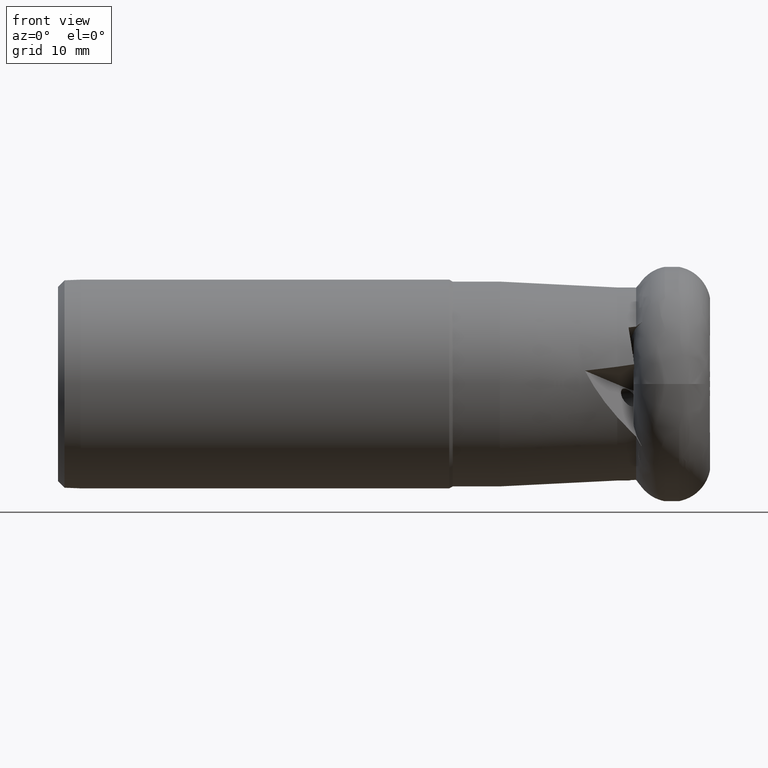
[diagram: clean part render]
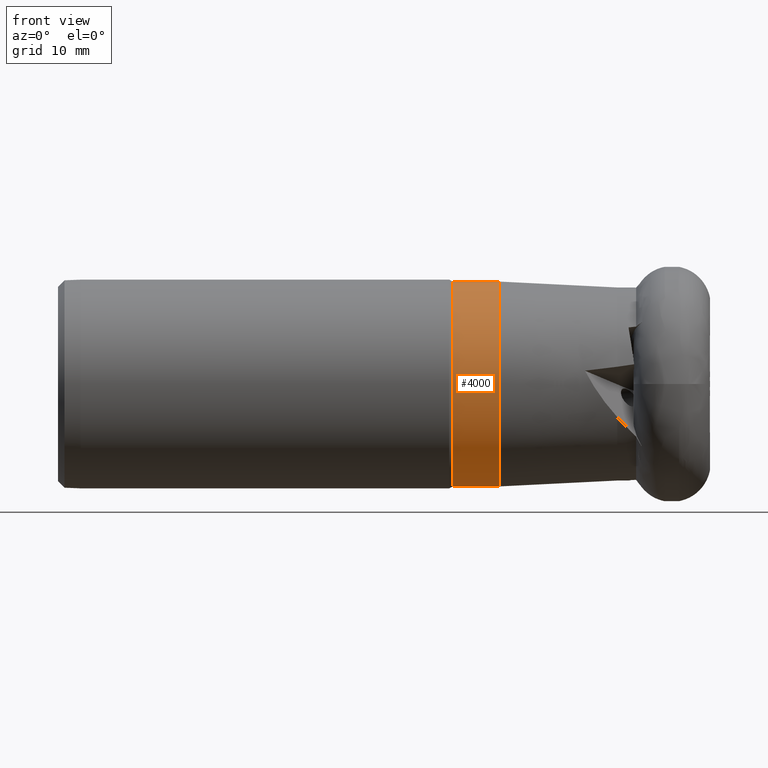
[diagram: same view with one face highlighted and labeled with its STEP entity id]
A machine part, front view. The second image highlights one B-rep face of the part: STEP entity #4000.
In plain terms, the highlighted cylindrical surface (partial cylindrical patch) has radius 15.7 mm, axis along (1, -0, -0).
Its self-contained STEP definition (entity closure, byte-faithful):
#184 = CARTESIAN_POINT ( 'NONE',  ( -38.23038475772932500, 1.941065176648554300E-015, -15.69999999999999600 ) ) ;
#220 = VERTEX_POINT ( 'NONE', #184 ) ;
#319 = CARTESIAN_POINT ( 'NONE',  ( -31.00000000000000000, 0.0000000000000000000, 0.0000000000000000000 ) ) ;
#765 = ORIENTED_EDGE ( 'NONE', *, *, #3369, .T. ) ;
#778 = CARTESIAN_POINT ( 'NONE',  ( -31.00000000000000000, 1.922695474661343500E-015, -15.69999999999999600 ) ) ;
#1089 = ORIENTED_EDGE ( 'NONE', *, *, #2717, .F. ) ;
#1192 = DIRECTION ( 'NONE',  ( 1.000000000000000000, -0.0000000000000000000, -0.0000000000000000000 ) ) ;
#1253 = EDGE_CURVE ( 'NONE', #5436, #3980, #2082, .T. ) ;
#1765 = CARTESIAN_POINT ( 'NONE',  ( -38.23038475772932500, 0.0000000000000000000, 15.69999999999999600 ) ) ;
#1803 = CARTESIAN_POINT ( 'NONE',  ( -31.00000000000000000, 0.0000000000000000000, 15.69999999999999600 ) ) ;
#2012 = CARTESIAN_POINT ( 'NONE',  ( -38.23038475772932500, 0.0000000000000000000, 0.0000000000000000000 ) ) ;
#2082 = CIRCLE ( 'NONE', #5107, 15.69999999999999600 ) ;
#2140 = EDGE_CURVE ( 'NONE', #5362, #220, #2768, .T. ) ;
#2343 = LINE ( 'NONE', #4033, #5818 ) ;
#2518 = DIRECTION ( 'NONE',  ( 1.000000000000000000, -0.0000000000000000000, -0.0000000000000000000 ) ) ;
#2717 = EDGE_CURVE ( 'NONE', #5362, #5436, #4967, .T. ) ;
#2768 = CIRCLE ( 'NONE', #5481, 15.69999999999999600 ) ;
#2981 = DIRECTION ( 'NONE',  ( 0.0000000000000000000, 0.0000000000000000000, -1.000000000000000000 ) ) ;
#3369 = EDGE_CURVE ( 'NONE', #220, #3980, #2343, .T. ) ;
#3648 = ORIENTED_EDGE ( 'NONE', *, *, #1253, .F. ) ;
#3723 = AXIS2_PLACEMENT_3D ( 'NONE', #4104, #4171, #4947 ) ;
#3829 = ORIENTED_EDGE ( 'NONE', *, *, #2140, .T. ) ;
#3980 = VERTEX_POINT ( 'NONE', #778 ) ;
#4000 = ADVANCED_FACE ( 'NONE', ( #5246 ), #5164, .T. ) ;
#4033 = CARTESIAN_POINT ( 'NONE',  ( 0.0000000000000000000, 0.0000000000000000000, -15.69999999999999600 ) ) ;
#4104 = CARTESIAN_POINT ( 'NONE',  ( 0.0000000000000000000, 0.0000000000000000000, 0.0000000000000000000 ) ) ;
#4171 = DIRECTION ( 'NONE',  ( 1.000000000000000000, -0.0000000000000000000, -0.0000000000000000000 ) ) ;
#4947 = DIRECTION ( 'NONE',  ( 0.0000000000000000000, 0.0000000000000000000, -1.000000000000000000 ) ) ;
#4967 = LINE ( 'NONE', #5946, #6010 ) ;
#5033 = EDGE_LOOP ( 'NONE', ( #1089, #3829, #765, #3648 ) ) ;
#5107 = AXIS2_PLACEMENT_3D ( 'NONE', #319, #5470, #5385 ) ;
#5164 = CYLINDRICAL_SURFACE ( 'NONE', #3723, 15.69999999999999600 ) ;
#5246 = FACE_OUTER_BOUND ( 'NONE', #5033, .T. ) ;
#5362 = VERTEX_POINT ( 'NONE', #1765 ) ;
#5385 = DIRECTION ( 'NONE',  ( 0.0000000000000000000, 0.0000000000000000000, -1.000000000000000000 ) ) ;
#5436 = VERTEX_POINT ( 'NONE', #1803 ) ;
#5470 = DIRECTION ( 'NONE',  ( 1.000000000000000000, -0.0000000000000000000, -0.0000000000000000000 ) ) ;
#5481 = AXIS2_PLACEMENT_3D ( 'NONE', #2012, #2518, #2981 ) ;
#5548 = DIRECTION ( 'NONE',  ( 1.000000000000000000, -0.0000000000000000000, -0.0000000000000000000 ) ) ;
#5818 = VECTOR ( 'NONE', #1192, 1000.000000000000000 ) ;
#5946 = CARTESIAN_POINT ( 'NONE',  ( 0.0000000000000000000, 1.922695474661343900E-015, 15.69999999999999600 ) ) ;
#6010 = VECTOR ( 'NONE', #5548, 1000.000000000000000 ) ;